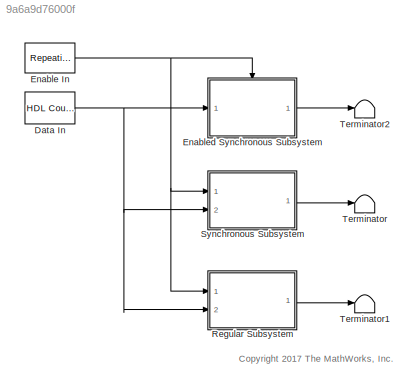
MODEL slx_9a6a9d76000f
KIND model
CONFIG AbsTol = auto
CONFIG EnableMultiTasking = off
CONFIG FixedStep = auto
CONFIG MaxStep = auto
CONFIG MinStep = auto
CONFIG RelTol = 1e-3
CONFIG SampleTimeConstraint = Unconstrained
CONFIG Solver = FixedStepDiscrete
CONFIG SolverName = FixedStepDiscrete
CONFIG StartTime = 0.0
CONFIG StopTime = 10.0
BLOCK [Reference] Data In  REF=hdlsllib/Sources/HDL Counter
  Ports = [0, 1]
  SourceBlock = hdlsllib/Sources/HDL Counter
  SourceProductBaseCode = SL
  SourceProductName = Simulink
  SourceType = HDL Counter
BLOCK [Reference] Enable In  REF=simulink/Sources/Repeating
Sequence
Stair
  Ports = [0, 1]
  SourceBlock = simulink/Sources/Repeating\nSequence\nStair
  SourceProductBaseCode = SL
  SourceProductName = Simulink
  SourceType = Repeating Sequence Stair
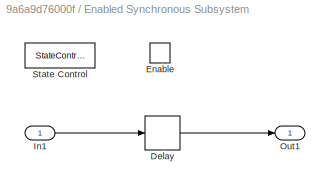
BLOCK [SubSystem] Enabled Synchronous Subsystem
  Ports = [1, 1, 1]
  RequestExecContextInheritance = off
  TreatAsAtomicUnit = on
BLOCK [Delay] Enabled Synchronous Subsystem/Delay
  DelayLength = 1
  InputPortMap = u0
  Ports = [1, 1]
BLOCK [EnablePort] Enabled Synchronous Subsystem/Enable
  Ports = []
BLOCK [Inport] Enabled Synchronous Subsystem/In1
  IconDisplay = Port number
BLOCK [Outport] Enabled Synchronous Subsystem/Out1
  IconDisplay = Port number
BLOCK [StateControl] Enabled Synchronous Subsystem/State Control
  StateControl = Synchronous
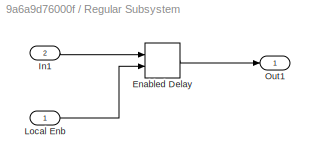
BLOCK [SubSystem] Regular Subsystem
  Ports = [2, 1]
  RequestExecContextInheritance = off
BLOCK [Delay] Regular Subsystem/Enabled Delay
  DelayLength = 1
  InputPortMap = u0,e6
  Ports = [2, 1]
  ShowEnablePort = on
BLOCK [Inport] Regular Subsystem/In1
  IconDisplay = Port number
  Port = 2
BLOCK [Inport] Regular Subsystem/Local Enb
  IconDisplay = Port number
BLOCK [Outport] Regular Subsystem/Out1
  IconDisplay = Port number
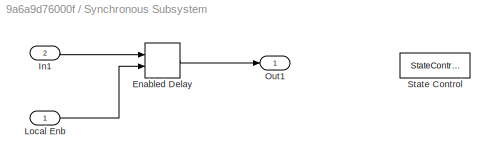
BLOCK [SubSystem] Synchronous Subsystem
  Ports = [2, 1]
  RequestExecContextInheritance = off
BLOCK [Delay] Synchronous Subsystem/Enabled Delay
  DelayLength = 1
  InputPortMap = u0,e6
  Ports = [2, 1]
  ShowEnablePort = on
BLOCK [Inport] Synchronous Subsystem/In1
  IconDisplay = Port number
  Port = 2
BLOCK [Inport] Synchronous Subsystem/Local Enb
  IconDisplay = Port number
BLOCK [Outport] Synchronous Subsystem/Out1
  IconDisplay = Port number
BLOCK [StateControl] Synchronous Subsystem/State Control
  StateControl = Synchronous
BLOCK [Terminator] Terminator
BLOCK [Terminator] Terminator1
BLOCK [Terminator] Terminator2
ANNOTATION (root): <copyright redacted>
NET Data In:1 -> Enabled Synchronous Subsystem:1, Regular Subsystem:2, Synchronous Subsystem:2
NET Enable In:1 -> Enabled Synchronous Subsystem:enable, Regular Subsystem:1, Synchronous Subsystem:1
LINE Enabled Synchronous Subsystem/Delay:1 -> Enabled Synchronous Subsystem/Out1:1
LINE Enabled Synchronous Subsystem/In1:1 -> Enabled Synchronous Subsystem/Delay:1
LINE Enabled Synchronous Subsystem:1 -> Terminator2:1
LINE Regular Subsystem/Enabled Delay:1 -> Regular Subsystem/Out1:1
LINE Regular Subsystem/In1:1 -> Regular Subsystem/Enabled Delay:1
LINE Regular Subsystem/Local Enb:1 -> Regular Subsystem/Enabled Delay:2
LINE Regular Subsystem:1 -> Terminator1:1
LINE Synchronous Subsystem/Enabled Delay:1 -> Synchronous Subsystem/Out1:1
LINE Synchronous Subsystem/In1:1 -> Synchronous Subsystem/Enabled Delay:1
LINE Synchronous Subsystem/Local Enb:1 -> Synchronous Subsystem/Enabled Delay:2
LINE Synchronous Subsystem:1 -> Terminator:1
note: NET lines group one-source signal fan-out (src -> all destinations, sorted); 1:1 wires keep LINE
